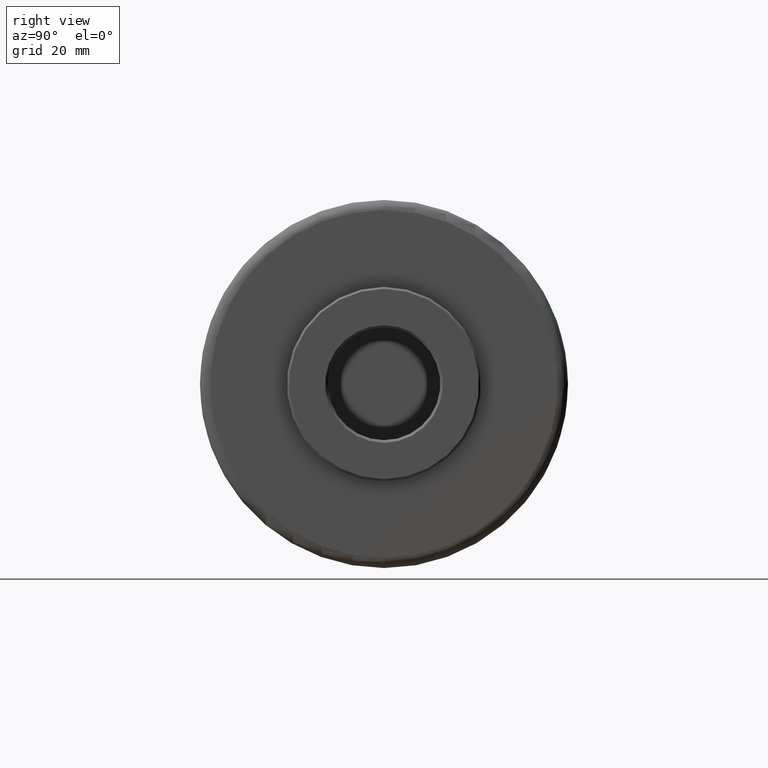
[diagram: clean part render]
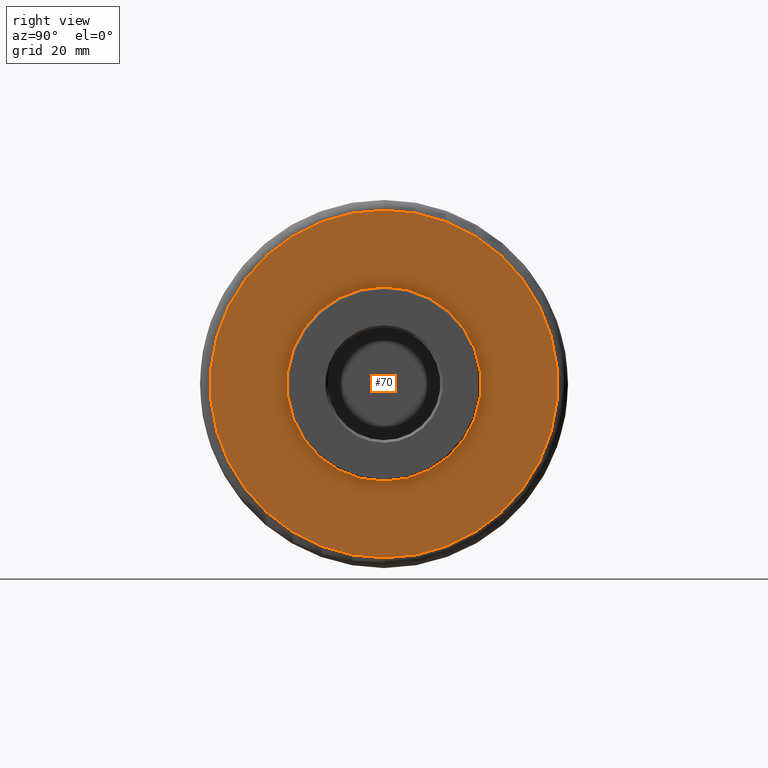
[diagram: same view with one face highlighted and labeled with its STEP entity id]
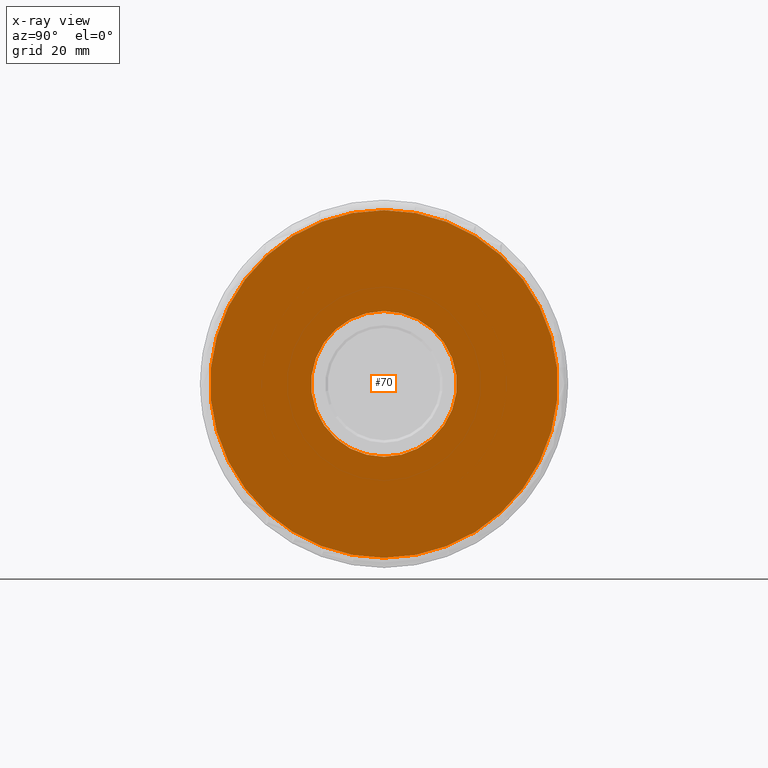
[diagram: x-ray of the same camera — body ghosted, the highlighted face saturated]
A machine part, right view. The second image highlights one B-rep face of the part: STEP entity #70.
The next image is the same camera in x-ray: the body ghosted, the highlighted face saturated — about 0% of this face is hidden behind the body in this view.
In plain terms, the highlighted planar face has unit normal (-1, 0, 0).
Its self-contained STEP definition (entity closure, byte-faithful):
#15 = VERTEX_POINT ( 'NONE', #1037 ) ;
#70 = ADVANCED_FACE ( 'NONE', ( #971, #127 ), #318, .F. ) ;
#87 = DIRECTION ( 'NONE',  ( 0.0000000000000000000, -1.000000000000000000, 0.0000000000000000000 ) ) ;
#102 = AXIS2_PLACEMENT_3D ( 'NONE', #635, #1362, #87 ) ;
#127 = FACE_BOUND ( 'NONE', #885, .T. ) ;
#159 = VERTEX_POINT ( 'NONE', #1353 ) ;
#217 = CARTESIAN_POINT ( 'NONE',  ( 96.50000000000000000, 0.0000000000000000000, 0.0000000000000000000 ) ) ;
#254 = EDGE_LOOP ( 'NONE', ( #1368, #704 ) ) ;
#318 = PLANE ( 'NONE',  #1216 ) ;
#347 = AXIS2_PLACEMENT_3D ( 'NONE', #217, #998, #821 ) ;
#373 = EDGE_CURVE ( 'NONE', #159, #15, #394, .T. ) ;
#379 = DIRECTION ( 'NONE',  ( 0.0000000000000000000, 0.0000000000000000000, 1.000000000000000000 ) ) ;
#389 = CARTESIAN_POINT ( 'NONE',  ( 96.50000000000002800, 1.745121688784977800E-015, -14.24999999999999300 ) ) ;
#394 = CIRCLE ( 'NONE', #347, 34.00000000000000700 ) ;
#410 = DIRECTION ( 'NONE',  ( 1.000000000000000000, -0.0000000000000000000, -0.0000000000000000000 ) ) ;
#435 = EDGE_CURVE ( 'NONE', #15, #159, #641, .T. ) ;
#464 = ORIENTED_EDGE ( 'NONE', *, *, #1227, .T. ) ;
#473 = DIRECTION ( 'NONE',  ( -1.000000000000000000, 0.0000000000000000000, 0.0000000000000000000 ) ) ;
#478 = CARTESIAN_POINT ( 'NONE',  ( 96.50000000000002800, 2.736911063134408300E-045, 14.24999999999999300 ) ) ;
#558 = AXIS2_PLACEMENT_3D ( 'NONE', #581, #410, #379 ) ;
#581 = CARTESIAN_POINT ( 'NONE',  ( 96.50000000000000000, 0.0000000000000000000, 0.0000000000000000000 ) ) ;
#635 = CARTESIAN_POINT ( 'NONE',  ( 96.50000000000002800, 1.232595164407830900E-029, 0.0000000000000000000 ) ) ;
#641 = CIRCLE ( 'NONE', #558, 34.00000000000000700 ) ;
#683 = ORIENTED_EDGE ( 'NONE', *, *, #1208, .T. ) ;
#704 = ORIENTED_EDGE ( 'NONE', *, *, #373, .T. ) ;
#771 = VERTEX_POINT ( 'NONE', #478 ) ;
#821 = DIRECTION ( 'NONE',  ( 0.0000000000000000000, 0.0000000000000000000, 1.000000000000000000 ) ) ;
#885 = EDGE_LOOP ( 'NONE', ( #683, #464 ) ) ;
#887 = CIRCLE ( 'NONE', #1109, 14.24999999999999300 ) ;
#939 = CARTESIAN_POINT ( 'NONE',  ( 96.50000000000000000, 33.90200000000000100, -33.90200000000000100 ) ) ;
#971 = FACE_OUTER_BOUND ( 'NONE', #254, .T. ) ;
#998 = DIRECTION ( 'NONE',  ( 1.000000000000000000, -0.0000000000000000000, -0.0000000000000000000 ) ) ;
#1037 = CARTESIAN_POINT ( 'NONE',  ( 96.50000000000000000, 0.0000000000000000000, 34.00000000000000700 ) ) ;
#1076 = VERTEX_POINT ( 'NONE', #389 ) ;
#1109 = AXIS2_PLACEMENT_3D ( 'NONE', #1398, #1166, #1292 ) ;
#1166 = DIRECTION ( 'NONE',  ( -1.000000000000000000, -4.869399230812090400E-016, -0.0000000000000000000 ) ) ;
#1208 = EDGE_CURVE ( 'NONE', #771, #1076, #1371, .T. ) ;
#1216 = AXIS2_PLACEMENT_3D ( 'NONE', #939, #473, #1367 ) ;
#1227 = EDGE_CURVE ( 'NONE', #1076, #771, #887, .T. ) ;
#1292 = DIRECTION ( 'NONE',  ( 0.0000000000000000000, -1.000000000000000000, 0.0000000000000000000 ) ) ;
#1353 = CARTESIAN_POINT ( 'NONE',  ( 96.50000000000000000, 4.286263797015737300E-015, -34.00000000000000700 ) ) ;
#1362 = DIRECTION ( 'NONE',  ( -1.000000000000000000, -4.869399230812090400E-016, -0.0000000000000000000 ) ) ;
#1367 = DIRECTION ( 'NONE',  ( 0.0000000000000000000, 0.0000000000000000000, 1.000000000000000000 ) ) ;
#1368 = ORIENTED_EDGE ( 'NONE', *, *, #435, .T. ) ;
#1371 = CIRCLE ( 'NONE', #102, 14.24999999999999300 ) ;
#1398 = CARTESIAN_POINT ( 'NONE',  ( 96.50000000000002800, 1.232595164407830900E-029, 0.0000000000000000000 ) ) ;